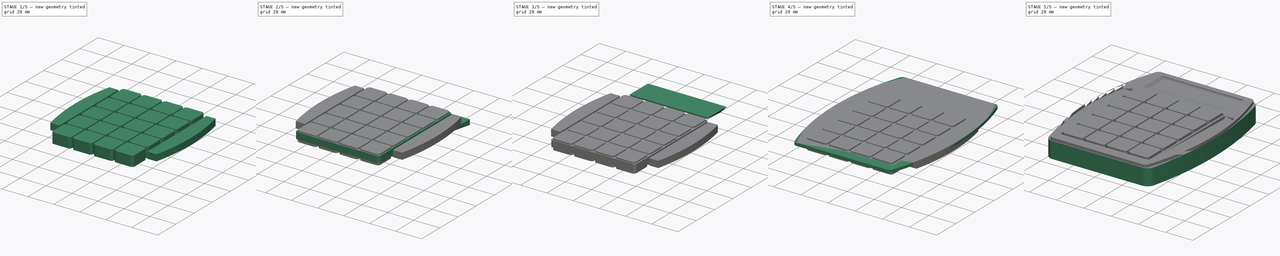
[diagram: build sequence overview — one tinted view per stage of 5, left to right]
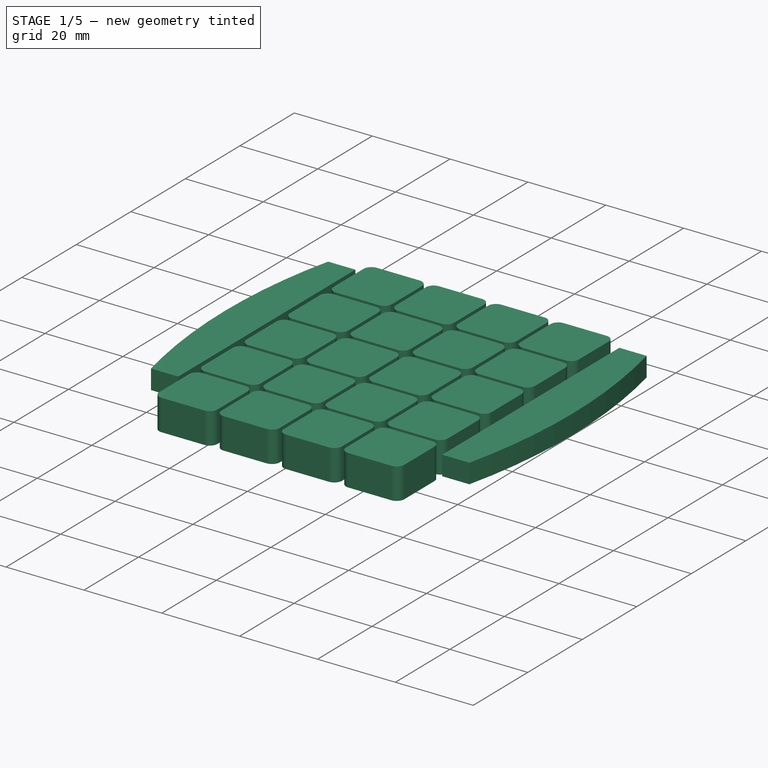
[diagram: stage 1 of 5 — iso view after this stage's code; geometry added in this stage tinted green]
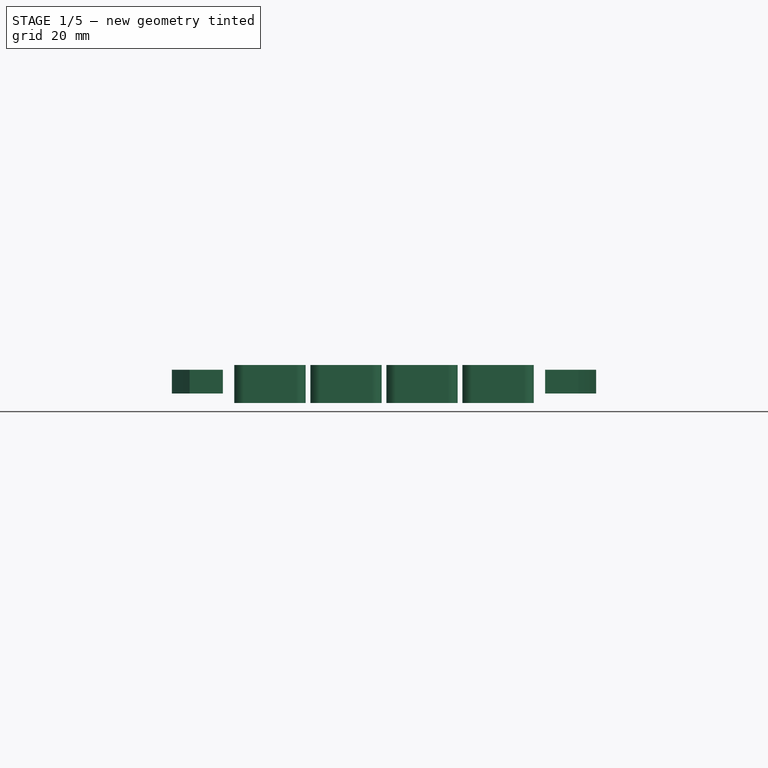
[diagram: stage 1 of 5 — front view after this stage's code; geometry added in this stage tinted green]
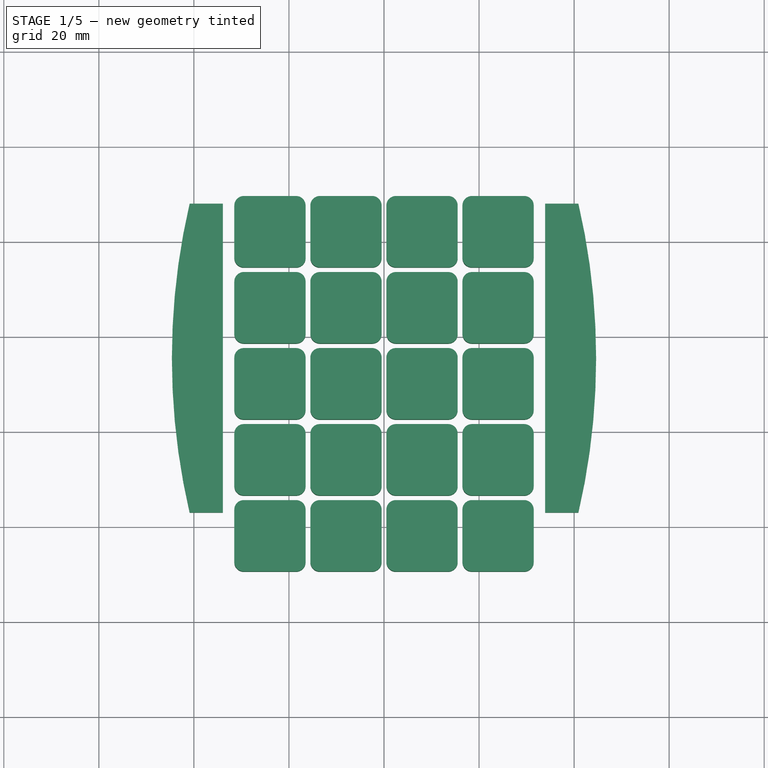
[diagram: stage 1 of 5 — top view after this stage's code; geometry added in this stage tinted green]
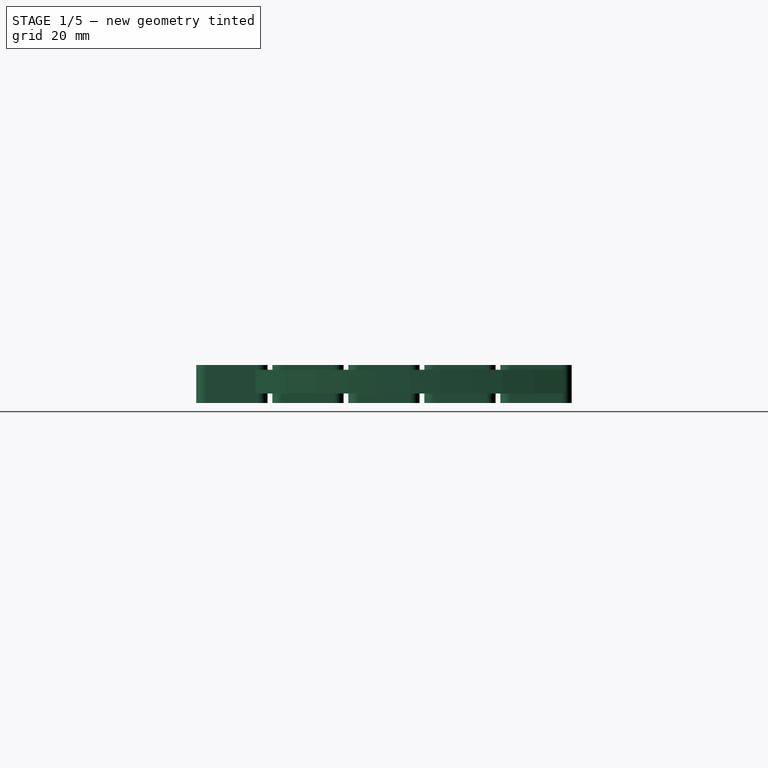
[diagram: stage 1 of 5 — right view after this stage's code; geometry added in this stage tinted green]
FCSTD DOCUMENT  (FreeCAD 0.16R6700 (Git))
Label: Caculadora
License: All rights reserved
LicenseURL: http://en.wikipedia.org/wiki/All_rights_reserved
objects: Part::Part2DObjectPython×17, Sketcher::SketchObject×9, PartDesign::Pad×6, PartDesign::Fillet×5, Part::Cut×3, PartDesign::Pocket×2, Part::FeaturePython×2, Part::MultiFuse×1, PartDesign::Chamfer×1, App::DocumentObjectGroup×1
note: 54 computed .brp shape members not serialized (recipe doc carries the construction recipe); baked Part::Feature solids carry a one-line shape summary decoded from their .brp

FEATURE [Sketcher::SketchObject] Sketch007
  Placement = pos=(0,0,7) rot=(0,0,1;0rad)
  sketch-geometry (4):
    g0: LineSegment StartX=-31.5 StartY=29.5853 StartZ=0 EndX=-16.5 EndY=29.5853 EndZ=0
    g1: LineSegment StartX=-16.5 StartY=29.5853 StartZ=0 EndX=-16.5 EndY=14.5853 EndZ=0
    g2: LineSegment StartX=-16.5 StartY=14.5853 StartZ=0 EndX=-31.5 EndY=14.5853 EndZ=0
    g3: LineSegment StartX=-31.5 StartY=14.5853 StartZ=0 EndX=-31.5 EndY=29.5853 EndZ=0
  constraints (10):
    c: Coincident(g0,g1)
    c: Coincident(g1,g2)
    c: Coincident(g2,g3)
    c: Coincident(g3,g0)
    c: Horizontal(g0)
    c: Horizontal(g2)
    c: Vertical(g1)
    c: Vertical(g3)
    c: DistanceX(g0,g0) = 15
    c: DistanceY(g3,g3) = 15
FEATURE [PartDesign::Pad] Pad004  label="Tecla"
  Length = 8
  Length2 = 100
  Placement = pos=(0,0,7) rot=(0,0,1;0rad)
  Sketch = -> Sketch007
  Type = 0
FEATURE [PartDesign::Fillet] Fillet004
  Base = -> Pad004 [Edge5,Edge2,Edge1,Edge8]
  Placement = pos=(0,0,7) rot=(0,0,1;0rad)
  Radius = 2
FEATURE [Sketcher::SketchObject] Sketch008
  Placement = pos=(0,0,14) rot=(0,0,1;0rad)
  sketch-geometry (8):
    g0: LineSegment StartX=-33.9009 StartY=28 StartZ=0 EndX=-40.9009 EndY=28 EndZ=0
    g1: LineSegment StartX=-40.9009 StartY=-37 StartZ=0 EndX=-33.9009 EndY=-37 EndZ=0
    g2: LineSegment StartX=-33.9009 StartY=-37 StartZ=0 EndX=-33.9009 EndY=28 EndZ=0
    g3: ArcOfCircle CenterX=98.6866 CenterY=-4.5 CenterZ=0 NormalX=0 NormalY=0 NormalZ=1 Radius=143.321 StartAngle=2.91284 EndAngle=3.37035
    g4: LineSegment StartX=33.9009 StartY=28 StartZ=0 EndX=40.9009 EndY=28 EndZ=0
    g5: LineSegment StartX=40.9009 StartY=-37 StartZ=0 EndX=33.9009 EndY=-37 EndZ=0
    g6: LineSegment StartX=33.9009 StartY=-37 StartZ=0 EndX=33.9009 EndY=28 EndZ=0
    g7: ArcOfCircle CenterX=-98.6866 CenterY=-4.5 CenterZ=0 NormalX=0 NormalY=0 NormalZ=1 Radius=143.321 StartAngle=6.05443 EndAngle=6.51194
  constraints (17):
    c: Coincident(g1,g2)
    c: Horizontal(g0)
    c: Horizontal(g1)
    c: Vertical(g2)
    c: DistanceY(g2,g2) = 65
    c: DistanceX(g1,g1) = 7
    c: DistanceX(g0,g0) = 7
    c: Coincident(g3,g0)
    c: Coincident(g3,g1)
    c: Coincident(g0,g2)
    c: Coincident(g5,g6)
    c: Horizontal(g4)
    c: Horizontal(g5)
    c: Vertical(g6)
    c: Coincident(g7,g4)
    c: Coincident(g7,g5)
    c: Coincident(g4,g6)
FEATURE [PartDesign::Pad] Pad005
  Length = 5
  Length2 = 100
  Placement = pos=(0,0,14) rot=(0,0,1;0rad)
  Reversed = true
  Sketch = -> Sketch008
  Type = 0
FEATURE [Part::FeaturePython] Array  label="Array Teclado"  # Draft array (typed FeaturePython)
  Angle = 360
  ArrayType = 0
  Axis = (0,0,1)
  Base = -> Fillet004
  Center = (0,0,0)
  Fuse = false
  IntervalAxis = (0,0,0)
  IntervalX = (16,0,0)
  IntervalY = (0,-16,0)
  IntervalZ = (0,0,0)
  NumberPolar = 1
  NumberX = 4
  NumberY = 5
  NumberZ = 1
FEATURE [Part::Part2DObjectPython] ShapeString  label="Num"  # Draft 2D object (typed FeaturePython)
  FontFile = <userpath>/Mis documentos/Freecad/Freecad-Repo/Fonts/Open_Sans/OpenSans-Regular.ttf
  Placement = pos=(-29.2922,25.2073,15) rot=(0,0,1;0rad)
  Size = 3
  String = Num
  Support = -> Array
  Tracking = 0
FEATURE [Part::Part2DObjectPython] ShapeString001  label="Lock"  # Draft 2D object (typed FeaturePython)
  FontFile = <userpath>/Mis documentos/Freecad/Freecad-Repo/Fonts/Open_Sans/OpenSans-Regular.ttf
  Placement = pos=(-29.2922,21.2073,15) rot=(0,0,1;0rad)
  Size = 3
  String = Lock
  Support = -> Array
  Tracking = 0
FEATURE [Part::Part2DObjectPython] ShapeString002  label="CE/AC"  # Draft 2D object (typed FeaturePython)
  FontFile = <userpath>/Mis documentos/Freecad/Freecad-Repo/Fonts/Open_Sans/OpenSans-Regular.ttf
  Placement = pos=(-29.2922,17.2073,15) rot=(0,0,1;0rad)
  Size = 3
  String = CE/AC
  Support = -> Array
  Tracking = 0
FEATURE [Part::Part2DObjectPython] ShapeString003  label="/"  # Draft 2D object (typed FeaturePython)
  FontFile = <userpath>/Mis documentos/Freecad/Freecad-Repo/Fonts/Open_Sans/OpenSans-Regular.ttf
  Placement = pos=(-12.2922,22.2073,15) rot=(0,0,1;0rad)
  Size = 6
  String = /
  Support = -> Array
  Tracking = 0
FEATURE [Part::Part2DObjectPython] ShapeString004  label="*"  # Draft 2D object (typed FeaturePython)
  FontFile = <userpath>/Mis documentos/Freecad/Freecad-Repo/Fonts/Open_Sans/OpenSans-Regular.ttf
  Placement = pos=(3.7078,22.2073,15) rot=(0,0,1;0rad)
  Size = 6
  String = *
  Support = -> Array
  Tracking = 0
FEATURE [Part::Part2DObjectPython] ShapeString005  label="BS"  # Draft 2D object (typed FeaturePython)
  FontFile = <userpath>/Mis documentos/Freecad/Freecad-Repo/Fonts/Open_Sans/OpenSans-Regular.ttf
  Placement = pos=(19.7078,22.2073,15) rot=(0,0,1;0rad)
  Size = 6
  String = BS
  Support = -> Array
  Tracking = 0
FEATURE [Part::Part2DObjectPython] ShapeString006  label="9"  # Draft 2D object (typed FeaturePython)
  FontFile = <userpath>/Mis documentos/Freecad/Freecad-Repo/Fonts/Open_Sans/OpenSans-Regular.ttf
  Placement = pos=(3.7078,7.2073,15) rot=(0,0,1;0rad)
  Size = 6
  String = 9
  Support = -> Array
  Tracking = 0
FEATURE [Part::Part2DObjectPython] ShapeString007  label="-"  # Draft 2D object (typed FeaturePython)
  FontFile = <userpath>/Mis documentos/Freecad/Freecad-Repo/Fonts/Open_Sans/OpenSans-Regular.ttf
  Placement = pos=(19.7078,7.2073,15) rot=(0,0,1;0rad)
  Size = 6
  String = -
  Support = -> Array
  Tracking = 0
FEATURE [Part::Part2DObjectPython] ShapeString008  label="8"  # Draft 2D object (typed FeaturePython)
  FontFile = <userpath>/Mis documentos/Freecad/Freecad-Repo/Fonts/Open_Sans/OpenSans-Regular.ttf
  Placement = pos=(-12.2922,7.2073,15) rot=(0,0,1;0rad)
  Size = 6
  String = 8
  Support = -> Array
  Tracking = 0
FEATURE [Part::Part2DObjectPython] ShapeString009  label="7"  # Draft 2D object (typed FeaturePython)
  FontFile = <userpath>/Mis documentos/Freecad/Freecad-Repo/Fonts/Open_Sans/OpenSans-Regular.ttf
  Placement = pos=(-28.2922,7.2073,15) rot=(0,0,1;0rad)
  Size = 6
  String = 7
  Support = -> Array
  Tracking = 0
FEATURE [Part::Part2DObjectPython] ShapeString010  label="6"  # Draft 2D object (typed FeaturePython)
  FontFile = <userpath>/Mis documentos/Freecad/Freecad-Repo/Fonts/Open_Sans/OpenSans-Regular.ttf
  Placement = pos=(3.7078,-8.7927,15) rot=(0,0,1;0rad)
  Size = 6
  String = 6
  Support = -> Array
  Tracking = 0
FEATURE [Part::Part2DObjectPython] ShapeString011  label="5"  # Draft 2D object (typed FeaturePython)
  FontFile = <userpath>/Mis documentos/Freecad/Freecad-Repo/Fonts/Open_Sans/OpenSans-Regular.ttf
  Placement = pos=(-12.2922,-8.7927,15) rot=(0,0,1;0rad)
  Size = 6
  String = 5
  Support = -> Array
  Tracking = 0
FEATURE [Part::Part2DObjectPython] ShapeString012  label="4"  # Draft 2D object (typed FeaturePython)
  FontFile = <userpath>/Mis documentos/Freecad/Freecad-Repo/Fonts/Open_Sans/OpenSans-Regular.ttf
  Placement = pos=(-28.2922,-8.7927,15) rot=(0,0,1;0rad)
  Size = 6
  String = 4
  Support = -> Array
  Tracking = 0
FEATURE [Part::Part2DObjectPython] ShapeString013  label="3"  # Draft 2D object (typed FeaturePython)
  FontFile = <userpath>/Mis documentos/Freecad/Freecad-Repo/Fonts/Open_Sans/OpenSans-Regular.ttf
  Placement = pos=(3.7078,-24.7927,15) rot=(0,0,1;0rad)
  Size = 6
  String = 3
  Support = -> Array
  Tracking = 0
FEATURE [Part::Part2DObjectPython] ShapeString014  label="2"  # Draft 2D object (typed FeaturePython)
  FontFile = <userpath>/Mis documentos/Freecad/Freecad-Repo/Fonts/Open_Sans/OpenSans-Regular.ttf
  Placement = pos=(-12.2922,-24.7927,15) rot=(0,0,1;0rad)
  Size = 6
  String = 2
  Support = -> Array
  Tracking = 0
FEATURE [Part::Part2DObjectPython] ShapeString015  label="1"  # Draft 2D object (typed FeaturePython)
  FontFile = <userpath>/Mis documentos/Freecad/Freecad-Repo/Fonts/Open_Sans/OpenSans-Regular.ttf
  Placement = pos=(-28.2922,-24.7927,15) rot=(0,0,1;0rad)
  Size = 6
  String = 1
  Support = -> Array
  Tracking = 0
FEATURE [Part::Part2DObjectPython] ShapeString016  label="+"  # Draft 2D object (typed FeaturePython)
  FontFile = <userpath>/Mis documentos/Freecad/Freecad-Repo/Fonts/Open_Sans/OpenSans-Regular.ttf
  Placement = pos=(19.7078,-8.7927,15) rot=(0,0,1;0rad)
  Size = 6
  String = +
  Support = -> Array
  Tracking = 0
FEATURE [App::DocumentObjectGroup] Grupo  label="Teclas"
  Group = -> [ShapeString,ShapeString001,ShapeString002,ShapeString003,ShapeString004,ShapeString005,ShapeString006,ShapeString007,ShapeString008,ShapeString009,ShapeString010,ShapeString011,ShapeString012,ShapeString013,ShapeString014,ShapeString015,ShapeString016]
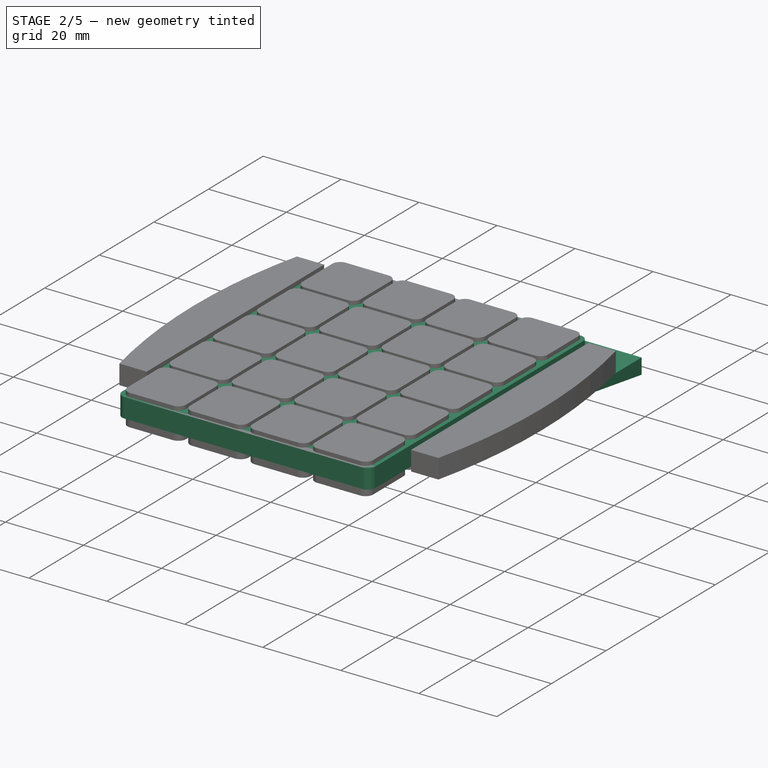
[diagram: stage 2 of 5 — iso view after this stage's code; geometry added in this stage tinted green]
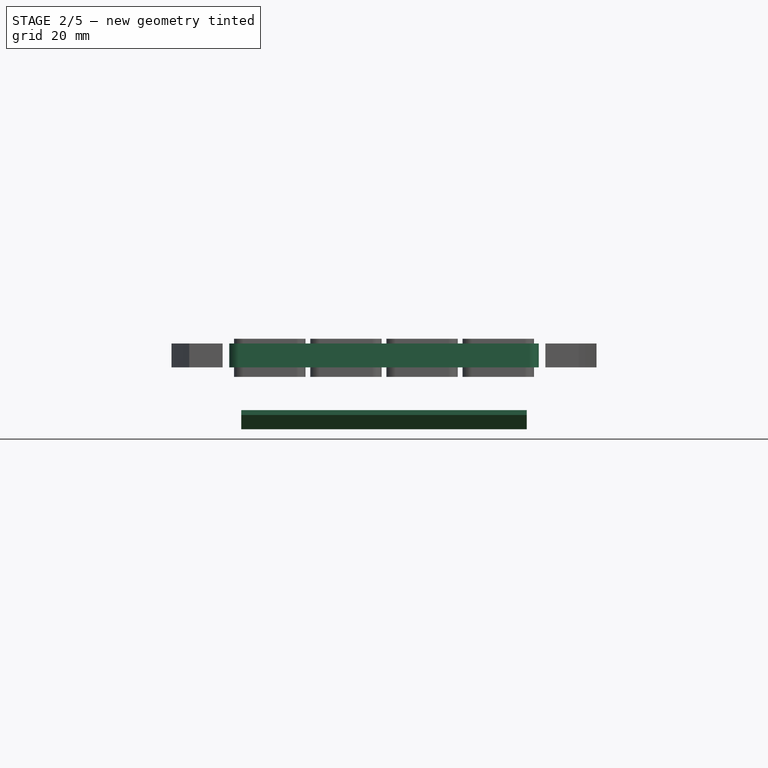
[diagram: stage 2 of 5 — front view after this stage's code; geometry added in this stage tinted green]
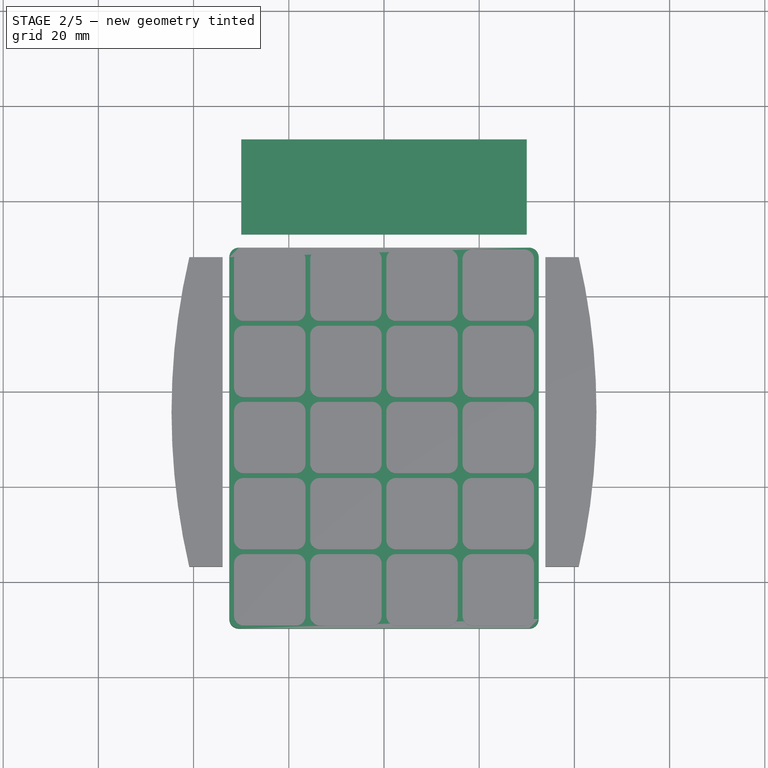
[diagram: stage 2 of 5 — top view after this stage's code; geometry added in this stage tinted green]
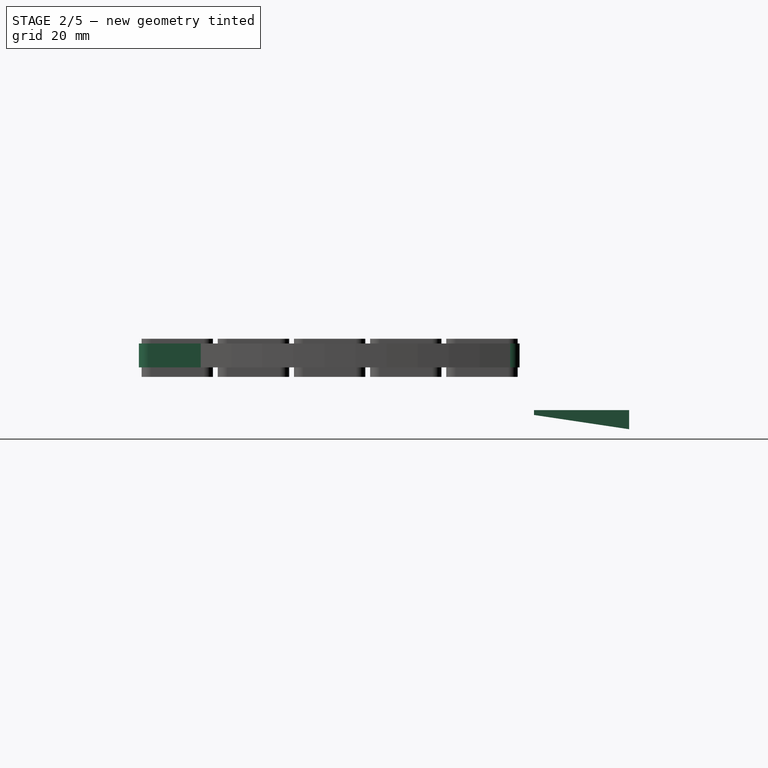
[diagram: stage 2 of 5 — right view after this stage's code; geometry added in this stage tinted green]
FEATURE [Sketcher::SketchObject] Sketch002
FEATURE [Sketcher::SketchObject] Sketch003
  sketch-geometry (4):
    g0: LineSegment StartX=-30 StartY=53 StartZ=0 EndX=30 EndY=53 EndZ=0
    g1: LineSegment StartX=30 StartY=53 StartZ=0 EndX=30 EndY=33 EndZ=0
    g2: LineSegment StartX=30 StartY=33 StartZ=0 EndX=-30 EndY=33 EndZ=0
    g3: LineSegment StartX=-30 StartY=33 StartZ=0 EndX=-30 EndY=53 EndZ=0
  constraints (11):
    c: Coincident(g0,g1)
    c: Coincident(g1,g2)
    c: Coincident(g2,g3)
    c: Coincident(g3,g0)
    c: Horizontal(g0)
    c: Horizontal(g2)
    c: Vertical(g1)
    c: Vertical(g3)
    c: DistanceX(g0,g0) = 60
    c: DistanceY(g3,g3) = 20
    c: Symmetric(g0,g0,g-2)
FEATURE [PartDesign::Pad] Pad002
  Length = 4
  Length2 = 100
  Reversed = true
  Sketch = -> Sketch003
  Type = 0
FEATURE [Sketcher::SketchObject] Sketch004
  ExternalGeometry = -> [Pad002]
  Placement = pos=(-30,0,0) rot=(0.57735,-0.57735,-0.57735;2.0944rad)
  Support = -> Pad002 [Face4]
  sketch-geometry (3):
    g0: LineSegment StartX=-53 StartY=-4 StartZ=0 EndX=-33 EndY=-1 EndZ=0
    g1: LineSegment StartX=-33 StartY=-1 StartZ=0 EndX=-33 EndY=-4 EndZ=0
    g2: LineSegment StartX=-33 StartY=-4 StartZ=0 EndX=-53 EndY=-4 EndZ=0
  constraints (8):
    c: PointOnObject(g0,g-3)
    c: PointOnObject(g0,g-4)
    c: Coincident(g0,g1)
    c: Coincident(g1,g-4)
    c: Coincident(g1,g2)
    c: Coincident(g2,g0)
    c: Coincident(g0,g-3)
    c: DistanceY(g0,g-4) = 1
FEATURE [PartDesign::Pocket] Pocket
  Length = 5
  Sketch = -> Sketch004
  Type = 1
FEATURE [Sketcher::SketchObject] Sketch006
  Placement = pos=(0,0,14) rot=(0,0,1;0rad)
  sketch-geometry (4):
    g0: LineSegment StartX=-32.5 StartY=30 StartZ=0 EndX=32.5 EndY=30 EndZ=0
    g1: LineSegment StartX=32.5 StartY=30 StartZ=0 EndX=32.5 EndY=-50 EndZ=0
    g2: LineSegment StartX=32.5 StartY=-50 StartZ=0 EndX=-32.5 EndY=-50 EndZ=0
    g3: LineSegment StartX=-32.5 StartY=-50 StartZ=0 EndX=-32.5 EndY=30 EndZ=0
  constraints (11):
    c: Coincident(g0,g1)
    c: Coincident(g1,g2)
    c: Coincident(g2,g3)
    c: Coincident(g3,g0)
    c: Horizontal(g0)
    c: Horizontal(g2)
    c: Vertical(g1)
    c: Vertical(g3)
    c: DistanceX(g0,g0) = 65
    c: Symmetric(g0,g0,g-2)
    c: DistanceY(g2,g0) = 80
FEATURE [PartDesign::Pad] Pad003  label="Alojamiento Teclado"
  Length = 5
  Length2 = 100
  Placement = pos=(0,0,14) rot=(0,0,1;0rad)
  Reversed = true
  Sketch = -> Sketch006
  Type = 0
FEATURE [PartDesign::Fillet] Fillet003
  Base = -> Pad003 [Edge1,Edge2,Edge8,Edge5]
  Placement = pos=(0,0,14) rot=(0,0,1;0rad)
  Radius = 2
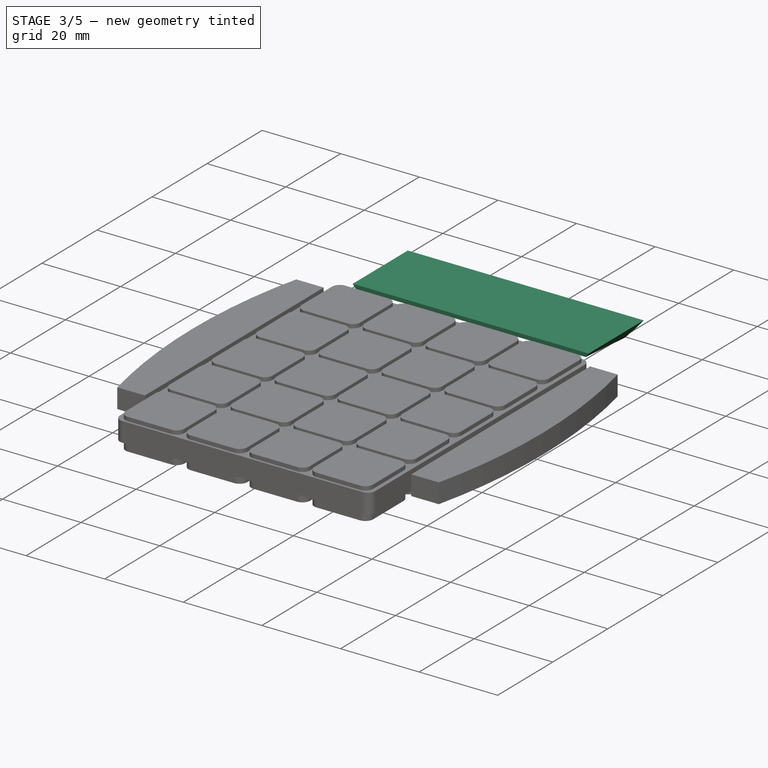
[diagram: stage 3 of 5 — iso view after this stage's code; geometry added in this stage tinted green]
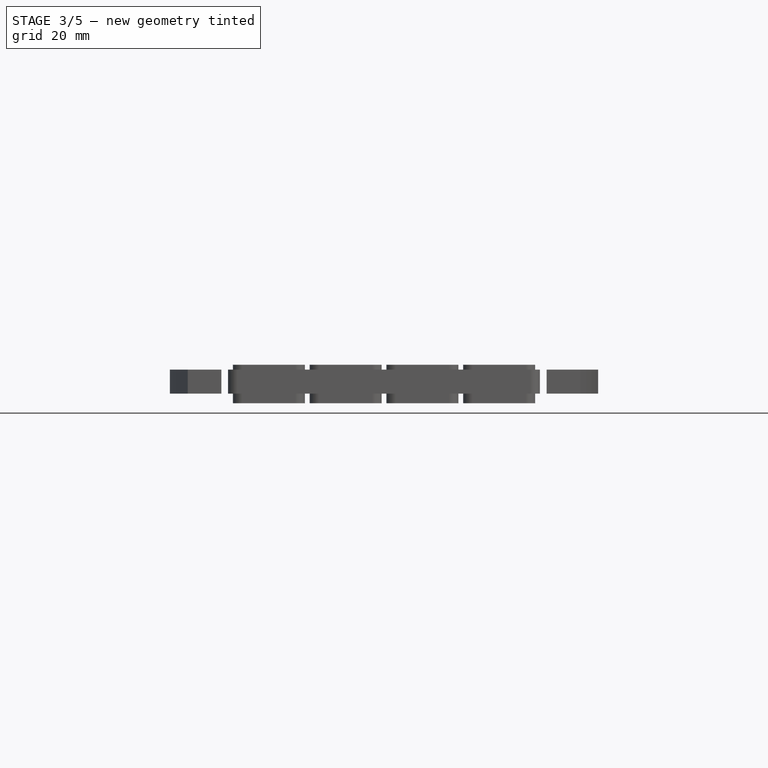
[diagram: stage 3 of 5 — front view after this stage's code; geometry added in this stage tinted green]
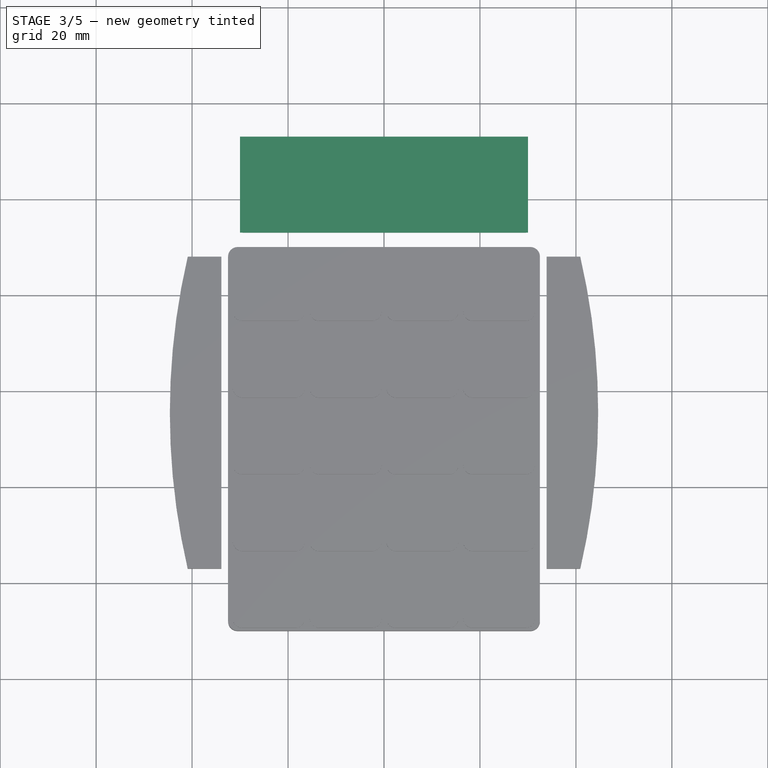
[diagram: stage 3 of 5 — top view after this stage's code; geometry added in this stage tinted green]
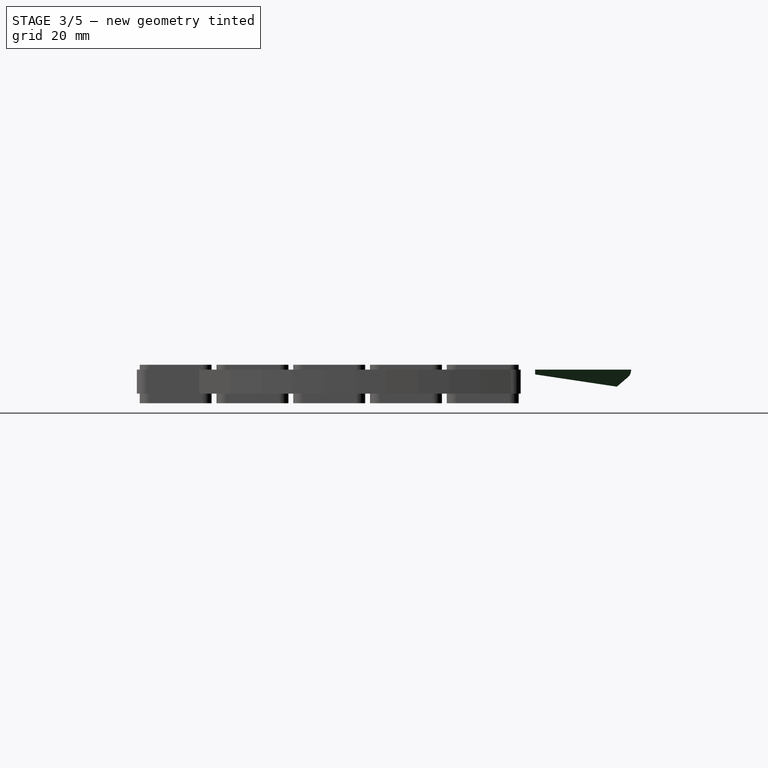
[diagram: stage 3 of 5 — right view after this stage's code; geometry added in this stage tinted green]
FEATURE [Sketcher::SketchObject] Sketch005
  ExternalGeometry = -> [Pocket]
  Placement = pos=(0,53,0) rot=(0,0.707107,0.707107;3.14159rad)
  Support = -> Pocket [Face1]
  sketch-geometry (7):
    g0: LineSegment StartX=-30 StartY=0 StartZ=0 EndX=-27 EndY=-4 EndZ=0
    g1: LineSegment StartX=-27 StartY=-4 StartZ=0 EndX=-30 EndY=-4 EndZ=0
    g2: LineSegment StartX=-30 StartY=-4 StartZ=0 EndX=-30 EndY=0 EndZ=0
    g3: LineSegment StartX=30 StartY=0 StartZ=0 EndX=27 EndY=-4 EndZ=0
    g4: LineSegment StartX=27 StartY=-4 StartZ=0 EndX=30 EndY=-4 EndZ=0
    g5: LineSegment StartX=30 StartY=-4 StartZ=0 EndX=30 EndY=0 EndZ=0
    g6: LineSegment StartX=30 StartY=-4 StartZ=0 EndX=30 EndY=0 EndZ=0
  constraints (18):
    c: Coincident(g-3,g0)
    c: Coincident(g0,g1)
    c: Coincident(g1,g-3)
    c: Coincident(g1,g2)
    c: Vertical(g2)
    c: Coincident(g0,g2)
    c: Horizontal(g1)
    c: DistanceX(g1,g0) = 3
    c: Coincident(g3,g4)
    c: Coincident(g4,g5)
    c: Vertical(g5)
    c: Coincident(g3,g5)
    c: Horizontal(g4)
    c: Coincident(g6,g4)
    c: Coincident(g6,g3)
    c: Coincident(g4,g-4)
    c: DistanceX(g3,g4) = 3
    c: Coincident(g3,g-4)
FEATURE [PartDesign::Pocket] Pocket001
  Length = 5
  Sketch = -> Sketch005
  Type = 1
FEATURE [PartDesign::Chamfer] Chamfer
  Base = -> Pocket001 [Edge3]
  Size = 4
FEATURE [PartDesign::Fillet] Fillet002
  Base = -> Chamfer [Edge2]
  Radius = 2
FEATURE [Part::FeaturePython] Clone  label="Clone of Fillet002"  # Draft clone (typed FeaturePython)
  Objects = -> [Fillet002]
  Placement = pos=(0,0,14) rot=(0,0,1;0rad)
  Scale = (1,1,1)
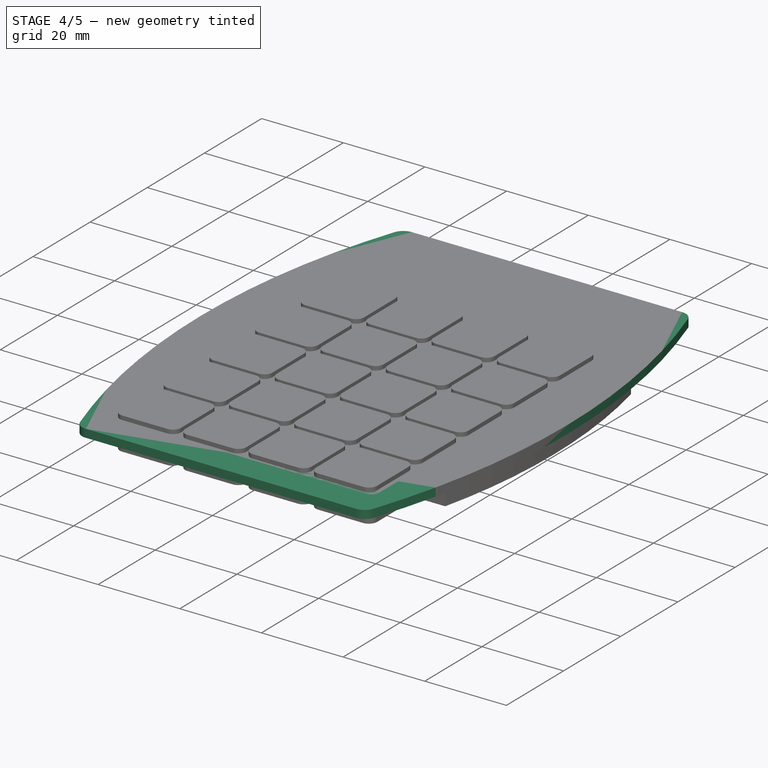
[diagram: stage 4 of 5 — iso view after this stage's code; geometry added in this stage tinted green]
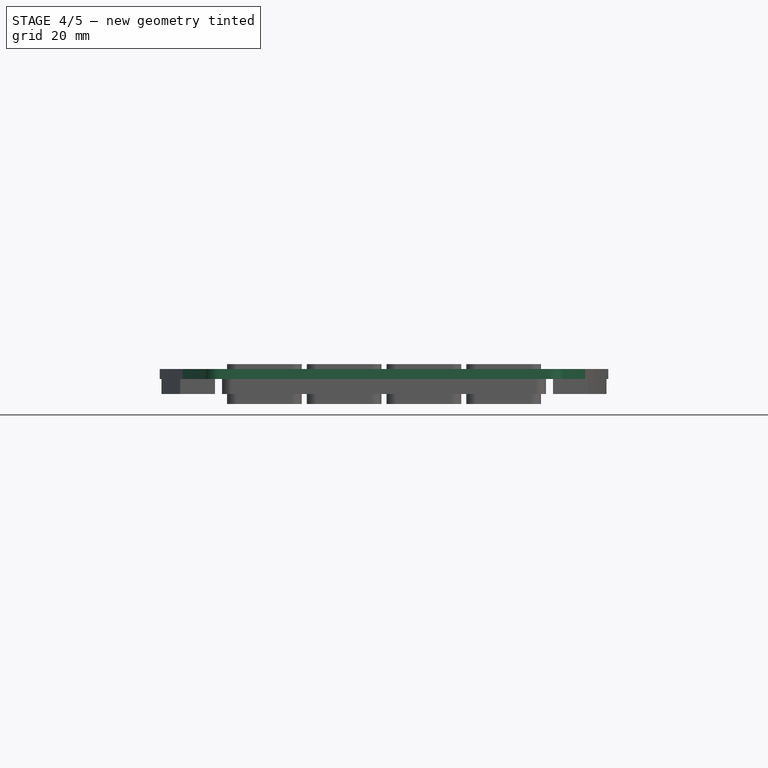
[diagram: stage 4 of 5 — front view after this stage's code; geometry added in this stage tinted green]
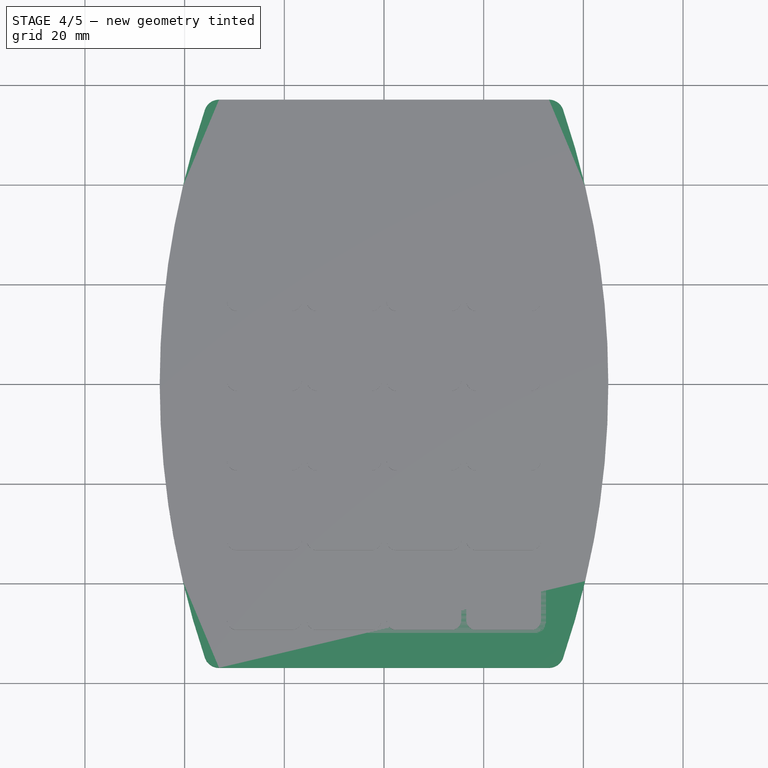
[diagram: stage 4 of 5 — top view after this stage's code; geometry added in this stage tinted green]
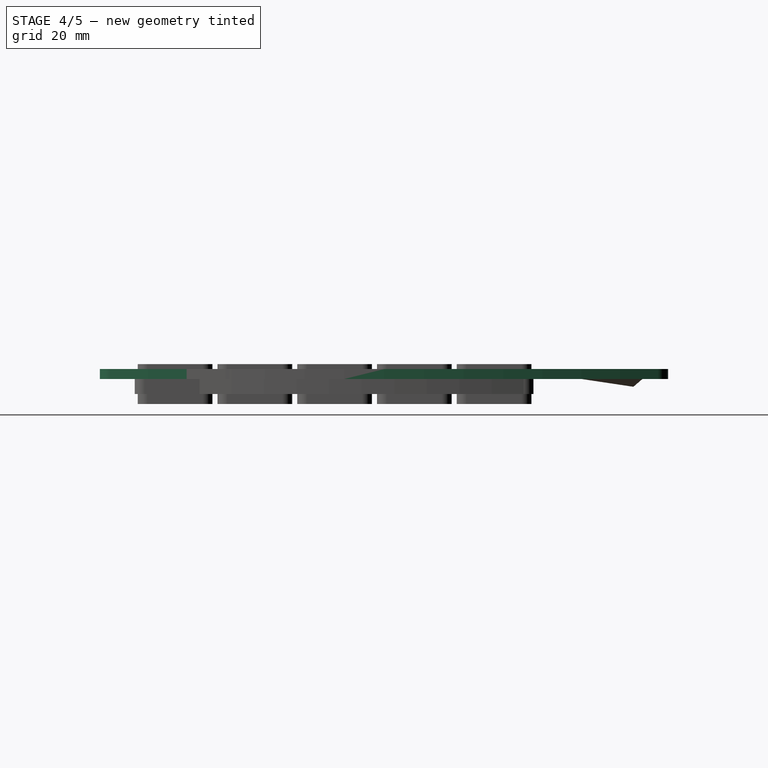
[diagram: stage 4 of 5 — right view after this stage's code; geometry added in this stage tinted green]
FEATURE [Sketcher::SketchObject] Sketch
  sketch-geometry (5):
    g0: LineSegment StartX=-37.5 StartY=57.5 StartZ=0 EndX=37.5 EndY=57.5 EndZ=0
    g1: LineSegment StartX=37.5 StartY=-57.5 StartZ=0 EndX=-37.5 EndY=-57.5 EndZ=0
    g2: LineSegment [constr] StartX=-45 StartY=0 StartZ=0 EndX=45 EndY=0 EndZ=0
    g3: ArcOfCircle CenterX=179.167 CenterY=0 CenterZ=0 NormalX=0 NormalY=0 NormalZ=1 Radius=224.167 StartAngle=2.88219 EndAngle=3.401
    g4: ArcOfCircle CenterX=-179.167 CenterY=0 CenterZ=0 NormalX=0 NormalY=0 NormalZ=1 Radius=224.167 StartAngle=6.02378 EndAngle=6.54259
  constraints (17):
    c: Horizontal(g0)
    c: Horizontal(g1)
    c: DistanceY(g1,g0) = 115
    c: DistanceX(g1,g1) = 75
    c: Symmetric(g1,g1,g-2)
    c: Symmetric(g1,g0,g-1)
    c: PointOnObject(g2,g-1)
    c: Horizontal(g2)
    c: Symmetric(g2,g2,g-2)
    c: DistanceX(g2,g2) = 90
    c: Coincident(g3,g0)
    c: Coincident(g3,g1)
    c: Coincident(g4,g0)
    c: Coincident(g4,g1)
    c: PointOnObject(g2,g4)
    c: PointOnObject(g2,g3)
    c: Symmetric(g0,g0,g-2)
FEATURE [PartDesign::Pad] Pad
  Length = 12
  Length2 = 100
  Sketch = -> Sketch
  Type = 0
FEATURE [PartDesign::Fillet] Fillet
  Base = -> Pad [Edge1,Edge2,Edge8,Edge5]
  Radius = 6
FEATURE [Sketcher::SketchObject] Sketch001
  ExternalGeometry = -> [Fillet]
  Placement = pos=(0,0,12) rot=(0,0,1;0rad)
  Support = -> Fillet [Face5]
  sketch-geometry (5):
    g0: LineSegment StartX=-35.2323 StartY=57 StartZ=0 EndX=35.2323 EndY=57 EndZ=0
    g1: LineSegment StartX=35.2323 StartY=-57 StartZ=0 EndX=-35.2323 EndY=-57 EndZ=0
    g2: ArcOfCircle CenterX=126.197 CenterY=0 CenterZ=0 NormalX=0 NormalY=0 NormalZ=1 Radius=171.197 StartAngle=2.80216 EndAngle=3.48102
    g3: LineSegment [constr] StartX=-45 StartY=0 StartZ=0 EndX=45 EndY=0 EndZ=0
    g4: ArcOfCircle CenterX=-126.197 CenterY=0 CenterZ=0 NormalX=0 NormalY=0 NormalZ=1 Radius=171.197 StartAngle=5.94376 EndAngle=6.62261
  constraints (18):
    c: Horizontal(g0)
    c: Horizontal(g1)
    c: PointOnObject(g0,g-8)
    c: PointOnObject(g1,g-9)
    c: PointOnObject(g1,g-10)
    c: DistanceY(g0,g-7) = 0.5
    c: Coincident(g2,g0)
    c: Coincident(g2,g1)
    c: PointOnObject(g3,g-1)
    c: PointOnObject(g3,g-1)
    c: PointOnObject(g3,g-4)
    c: PointOnObject(g3,g-3)
    c: PointOnObject(g3,g2)
    c: Coincident(g4,g0)
    c: Coincident(g4,g1)
    c: PointOnObject(g0,g-7)
    c: DistanceY(g-9,g1) = 0.5
    c: PointOnObject(g3,g4)
FEATURE [PartDesign::Pad] Pad001
  Length = 2
  Length2 = 100
  Sketch = -> Sketch001
  Type = 0
FEATURE [PartDesign::Fillet] Fillet001
  Base = -> Pad001 [Edge12,Edge8,Edge7,Edge5]
  Radius = 3
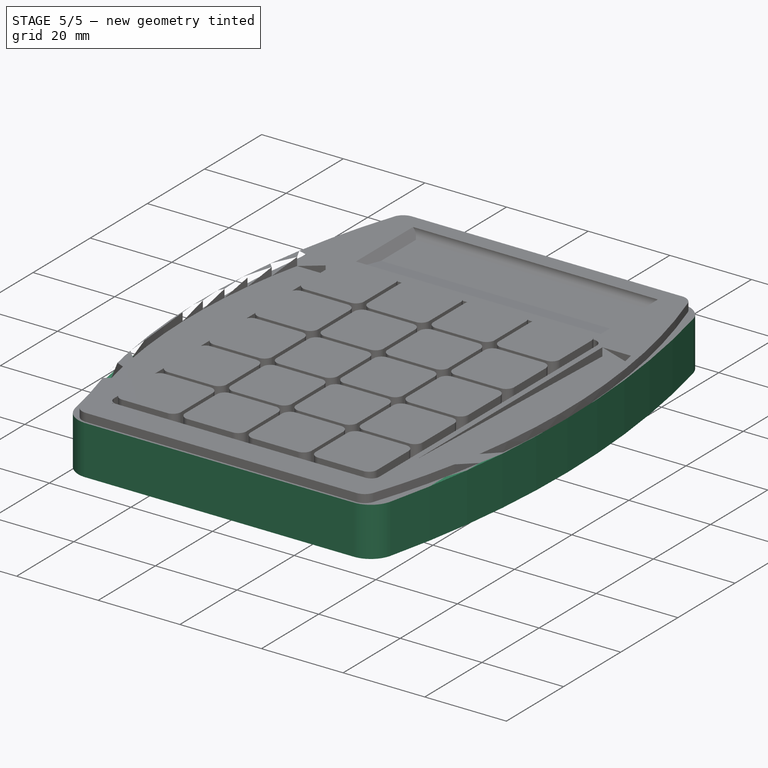
[diagram: stage 5 of 5 — iso view after this stage's code; geometry added in this stage tinted green]
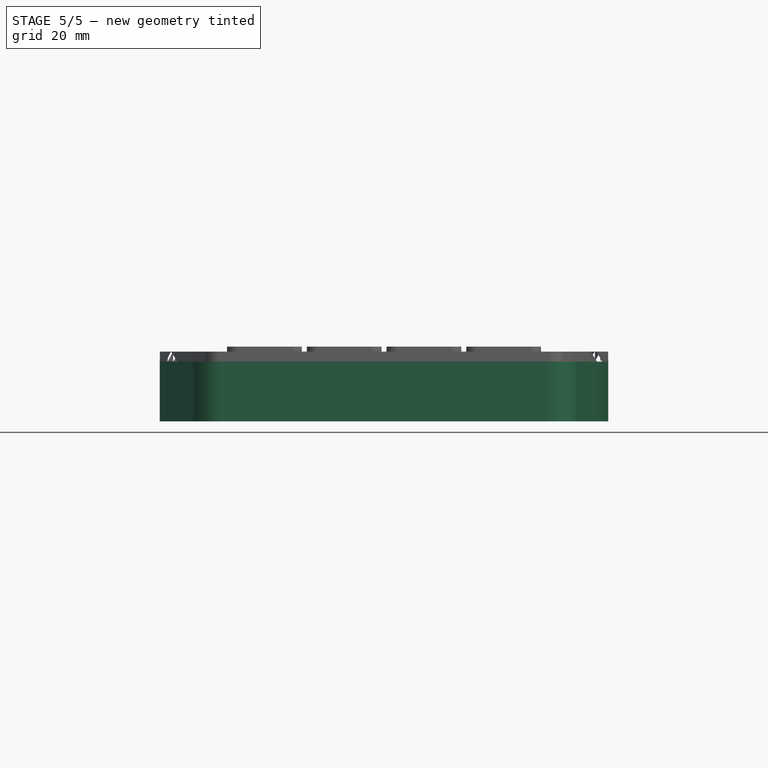
[diagram: stage 5 of 5 — front view after this stage's code; geometry added in this stage tinted green]
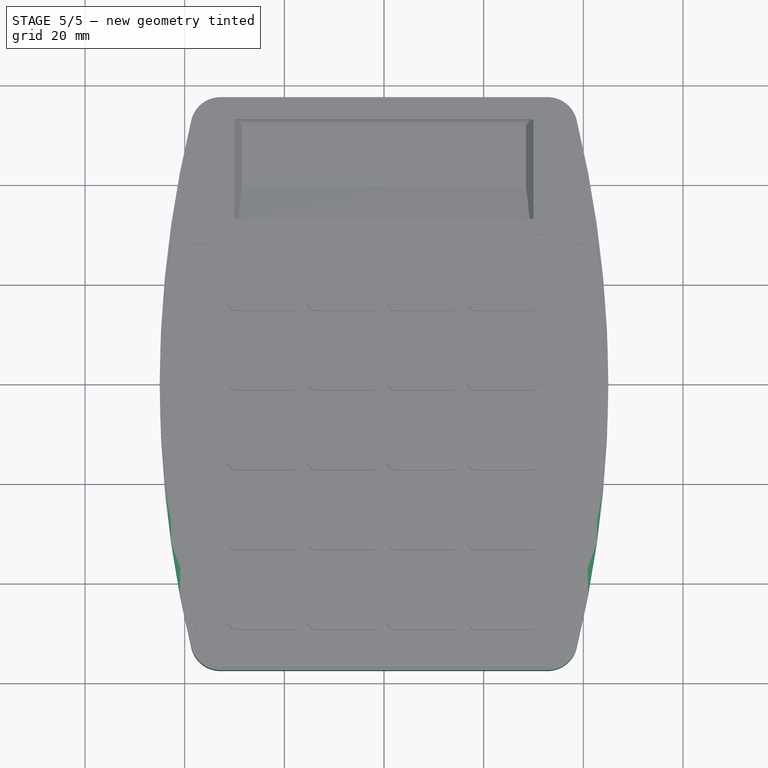
[diagram: stage 5 of 5 — top view after this stage's code; geometry added in this stage tinted green]
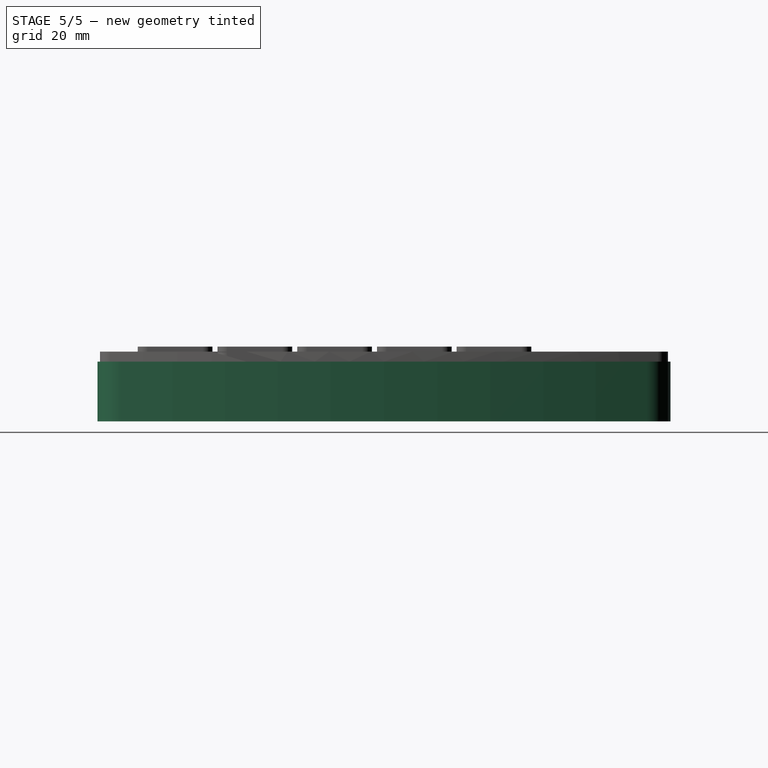
[diagram: stage 5 of 5 — right view after this stage's code; geometry added in this stage tinted green]
FEATURE [Part::MultiFuse] Fusion
  Shapes = -> [Fillet001,Fillet]
FEATURE [Part::Cut] Cut
  Base = -> Fusion
  Tool = -> Clone
FEATURE [Part::Cut] Cut001
  Base = -> Cut
  Tool = -> Fillet003
FEATURE [Part::Cut] Cut002
  Base = -> Cut001
  Tool = -> Pad005
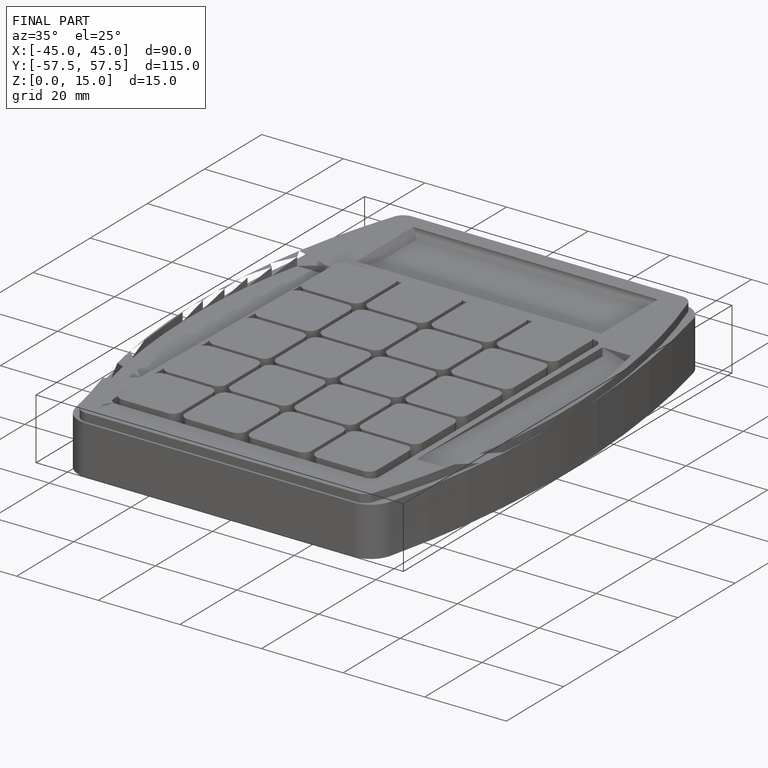
[diagram: finished part — iso view with bounding-box wireframe]
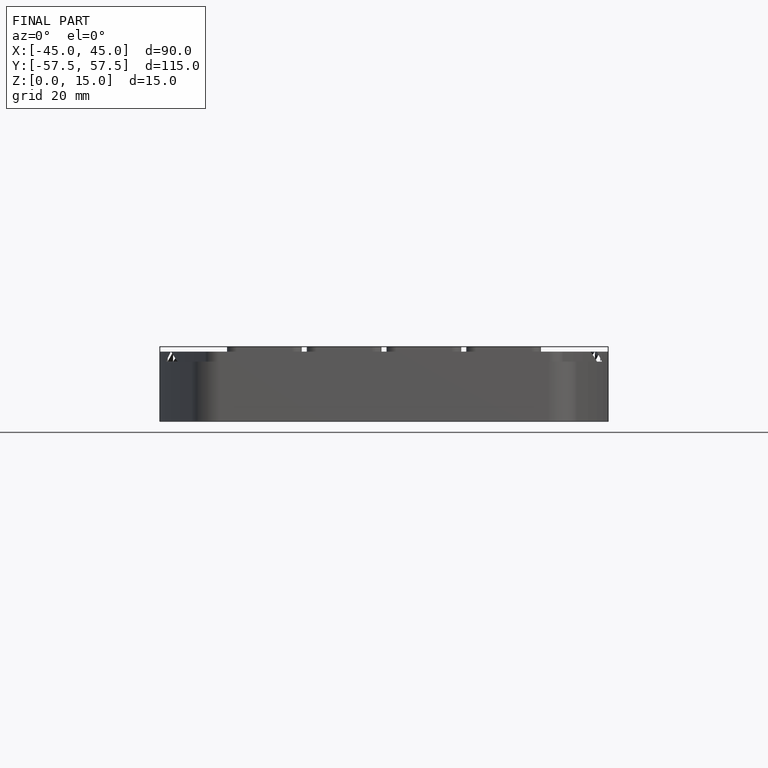
[diagram: finished part — front view with bounding-box wireframe]
